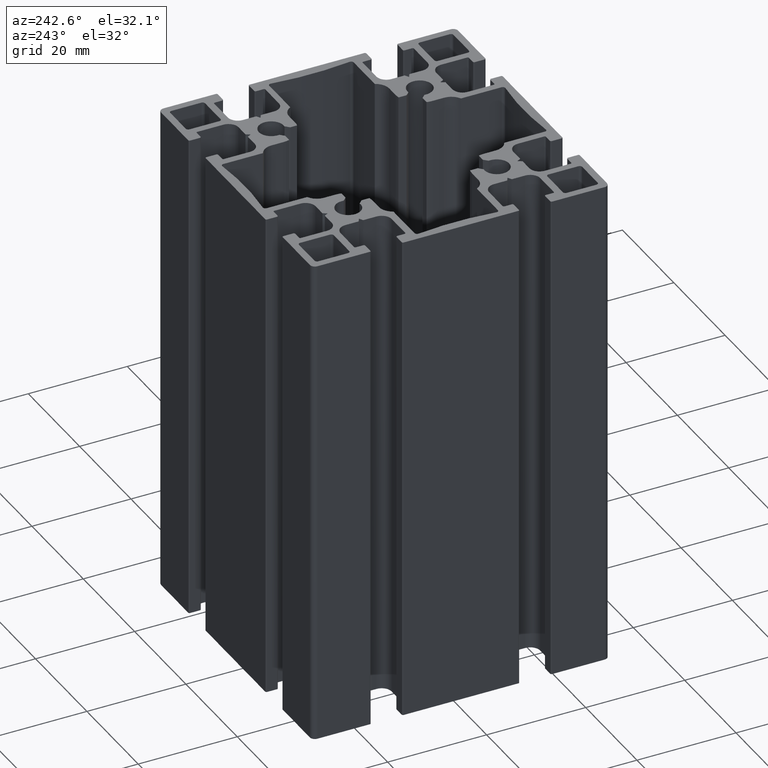
[diagram: clean part render]
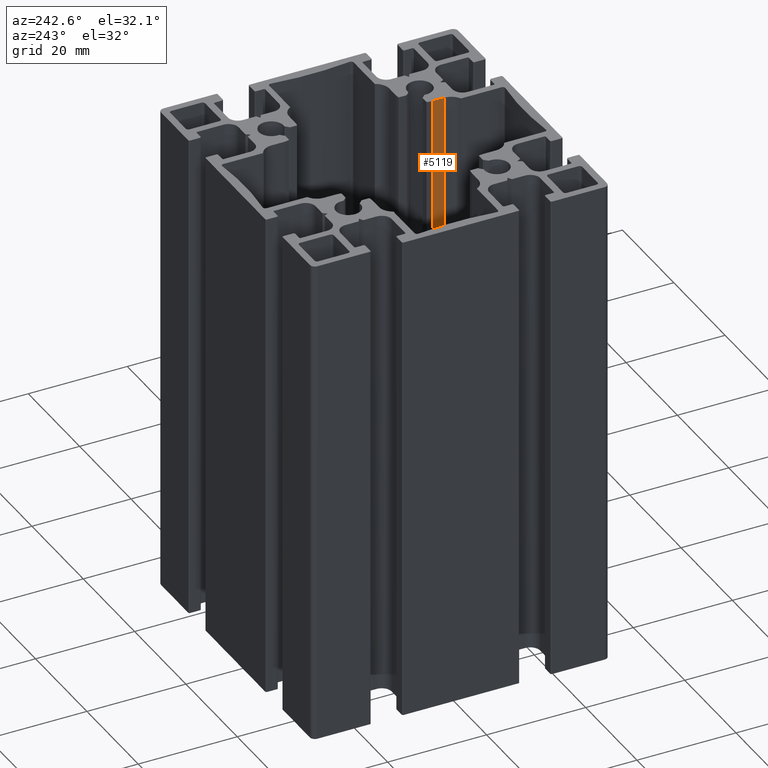
[diagram: same view with one face highlighted and labeled with its STEP entity id]
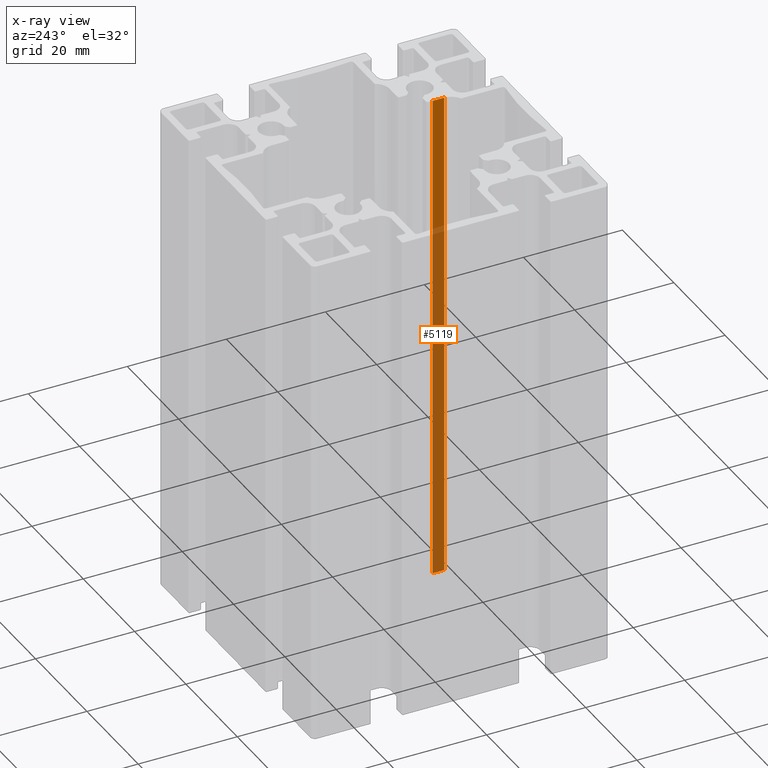
[diagram: x-ray of the same camera — body ghosted, the highlighted face saturated]
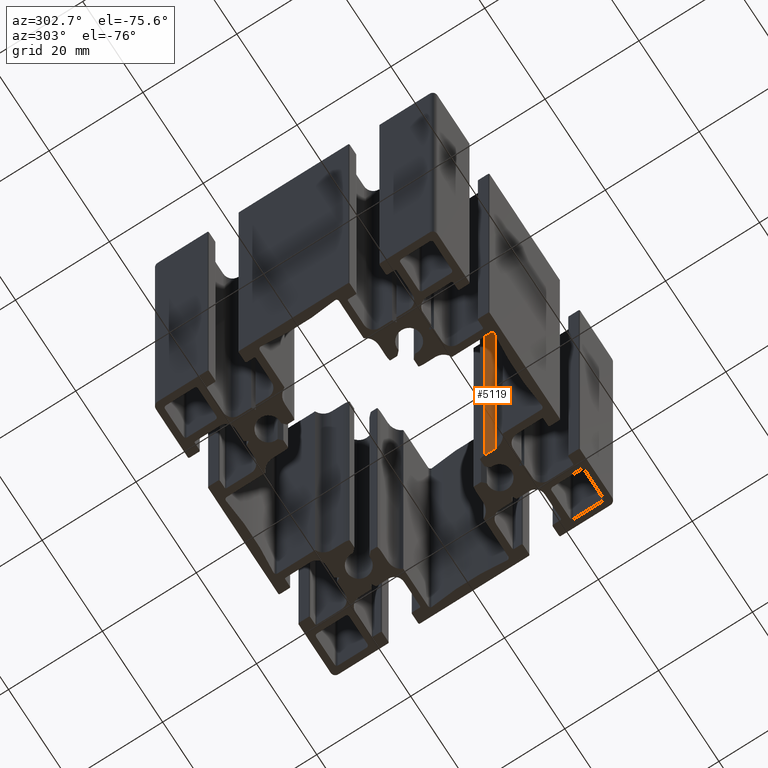
[diagram: same view with one face highlighted and labeled with its STEP entity id]
A machine part, auxiliary view. The second image highlights one B-rep face of the part: STEP entity #5119.
The next image is the same camera in x-ray: the body ghosted, the highlighted face saturated — about 73% of this face is hidden behind the body in this view.
A second angle (auxiliary view) of the same face is appended — the face is thin or edge-on in the first view.
In plain terms, the highlighted planar face has unit normal (1, 0, 0).
Its self-contained STEP definition (entity closure, byte-faithful):
#443=FACE_OUTER_BOUND('',#719,.T.);
#719=EDGE_LOOP('',(#4051,#4052,#4053,#4054));
#1098=LINE('',#8012,#1642);
#1105=LINE('',#8045,#1649);
#1202=LINE('',#8389,#1746);
#1266=LINE('',#8601,#1810);
#1642=VECTOR('',#6301,10.);
#1649=VECTOR('',#6334,10.);
#1746=VECTOR('',#6583,10.);
#1810=VECTOR('',#6795,10.);
#2295=VERTEX_POINT('',#8009);
#2296=VERTEX_POINT('',#8011);
#2309=VERTEX_POINT('',#8043);
#2480=VERTEX_POINT('',#8387);
#2834=EDGE_CURVE('',#2295,#2296,#1098,.T.);
#2851=EDGE_CURVE('',#2309,#2295,#1105,.T.);
#3023=EDGE_CURVE('',#2480,#2309,#1202,.T.);
#3130=EDGE_CURVE('',#2480,#2296,#1266,.T.);
#4051=ORIENTED_EDGE('',*,*,#3023,.F.);
#4052=ORIENTED_EDGE('',*,*,#3130,.T.);
#4053=ORIENTED_EDGE('',*,*,#2834,.F.);
#4054=ORIENTED_EDGE('',*,*,#2851,.F.);
#4954=PLANE('',#5656);
#5119=ADVANCED_FACE('',(#443),#4954,.F.);
#5656=AXIS2_PLACEMENT_3D('',#8600,#6793,#6794);
#6301=DIRECTION('',(0.,-1.,0.));
#6334=DIRECTION('',(0.,0.,1.));
#6583=DIRECTION('',(0.,1.,0.));
#6793=DIRECTION('center_axis',(1.,0.,0.));
#6794=DIRECTION('ref_axis',(0.,1.,0.));
#6795=DIRECTION('',(0.,0.,1.));
#8009=CARTESIAN_POINT('',(10.0319865142308,-15.0115352194401,100.));
#8011=CARTESIAN_POINT('',(10.0319865142308,-17.3693946769253,100.));
#8012=CARTESIAN_POINT('',(10.0319865142308,-8.68469733846283,100.));
#8043=CARTESIAN_POINT('',(10.0319865142308,-15.0115352194401,0.));
#8045=CARTESIAN_POINT('',(10.0319865142308,-15.0115352194401,0.));
#8387=CARTESIAN_POINT('',(10.0319865142308,-17.3693946769253,0.));
#8389=CARTESIAN_POINT('',(10.0319865142308,-8.68469733846283,0.));
#8600=CARTESIAN_POINT('Origin',(10.0319865142308,-17.3693946769253,0.));
#8601=CARTESIAN_POINT('',(10.0319865142308,-17.3693946769253,0.));